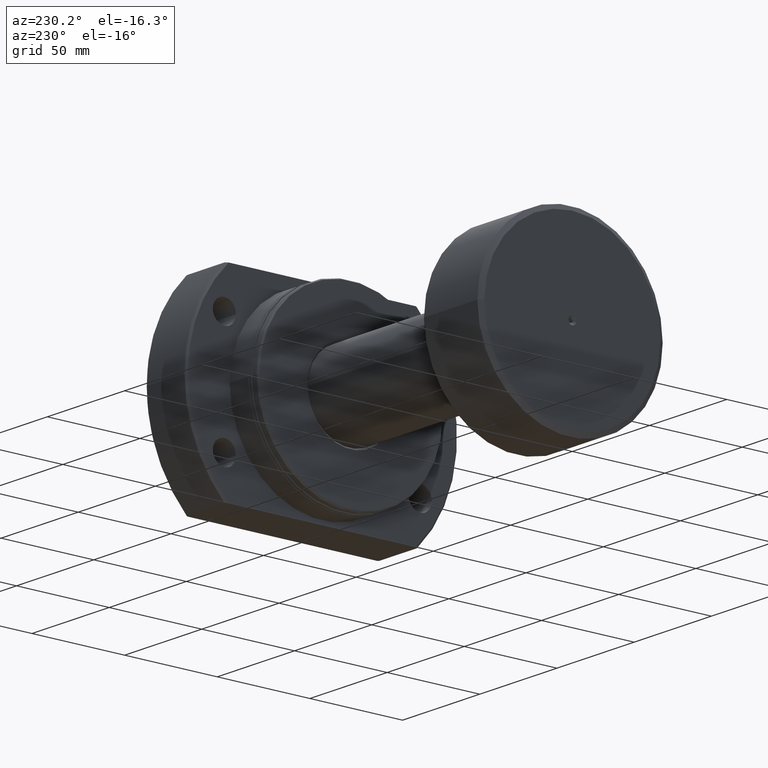
[diagram: clean part render]
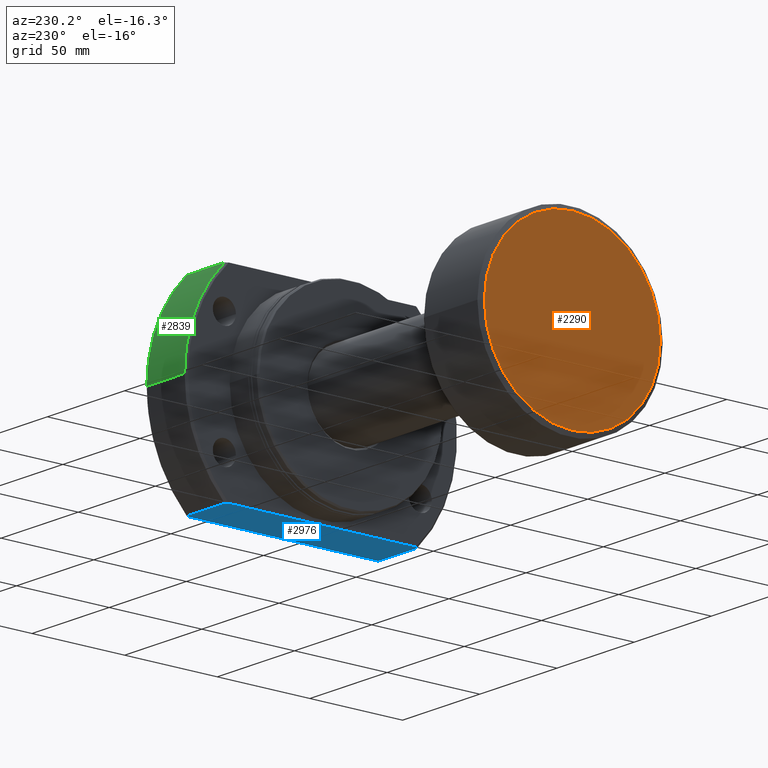
[diagram: same view with three faces highlighted in distinct colors, each labeled with its STEP entity id]
A machine part, auxiliary view with three faces highlighted in distinct colors.
Their STEP definitions:

[orange] entity #2290 — the highlighted planar face has unit normal (-1, -0, 0).
#49 = DIRECTION ( 'NONE',  ( 1.069542322069073813E-17, -1.000000000000000000, 0.000000000000000000 ) ) ;
#70 = DIRECTION ( 'NONE',  ( 1.069542322069065647E-17, -1.000000000000000000, 0.000000000000000000 ) ) ;
#227 = VERTEX_POINT ( 'NONE', #1919 ) ;
#296 = DIRECTION ( 'NONE',  ( -1.000000000000000000, -1.069542322069065801E-17, 0.000000000000000000 ) ) ;
#372 = CIRCLE ( 'NONE', #2814, 47.50000000000000000 ) ;
#454 = CARTESIAN_POINT ( 'NONE',  ( 4.801007089984315887E-15, 47.50000000000000000, 0.000000000000000000 ) ) ;
#499 = AXIS2_PLACEMENT_3D ( 'NONE', #2258, #3124, #1699 ) ;
#537 = CARTESIAN_POINT ( 'NONE',  ( 5.817072295949928215E-15, -47.50000000000000000, 5.970153145843347150E-15 ) ) ;
#982 = DIRECTION ( 'NONE',  ( -1.000000000000000000, -1.069542322069065801E-17, -0.000000000000000000 ) ) ;
#1035 = EDGE_LOOP ( 'NONE', ( #2123, #2527 ) ) ;
#1062 = DIRECTION ( 'NONE',  ( 1.069542322069073813E-17, -1.000000000000000000, 0.000000000000000000 ) ) ;
#1096 = DIRECTION ( 'NONE',  ( 1.000000000000000000, 1.069542322069065801E-17, 0.000000000000000000 ) ) ;
#1265 = AXIS2_PLACEMENT_3D ( 'NONE', #1948, #1096, #1062 ) ;
#1325 = CIRCLE ( 'NONE', #1265, 2.074999999999965539 ) ;
#1378 = EDGE_LOOP ( 'NONE', ( #3646, #2866 ) ) ;
#1514 = VERTEX_POINT ( 'NONE', #454 ) ;
#1693 = PLANE ( 'NONE',  #3484 ) ;
#1699 = DIRECTION ( 'NONE',  ( 1.069542322069065647E-17, -1.000000000000000000, 0.000000000000000000 ) ) ;
#1735 = EDGE_CURVE ( 'NONE', #1514, #2204, #2044, .T. ) ;
#1828 = VERTEX_POINT ( 'NONE', #2912 ) ;
#1919 = CARTESIAN_POINT ( 'NONE',  ( 2.654519846483561026E-15, 2.541142108230715670E-16, -2.074999999999965539 ) ) ;
#1948 = CARTESIAN_POINT ( 'NONE',  ( 2.654519846483561026E-15, 0.000000000000000000, 0.000000000000000000 ) ) ;
#1963 = FACE_BOUND ( 'NONE', #1035, .T. ) ;
#2044 = CIRCLE ( 'NONE', #499, 47.50000000000000000 ) ;
#2083 = EDGE_CURVE ( 'NONE', #1828, #227, #1325, .T. ) ;
#2123 = ORIENTED_EDGE ( 'NONE', *, *, #2083, .T. ) ;
#2204 = VERTEX_POINT ( 'NONE', #537 ) ;
#2258 = CARTESIAN_POINT ( 'NONE',  ( 5.309039692967122051E-15, 5.678242641172895614E-32, 0.000000000000000000 ) ) ;
#2281 = AXIS2_PLACEMENT_3D ( 'NONE', #2901, #3240, #49 ) ;
#2290 = ADVANCED_FACE ( 'NONE', ( #1963, #3116 ), #1693, .T. ) ;
#2374 = EDGE_CURVE ( 'NONE', #2204, #1514, #372, .T. ) ;
#2527 = ORIENTED_EDGE ( 'NONE', *, *, #2854, .T. ) ;
#2644 = CARTESIAN_POINT ( 'NONE',  ( 5.309039692967122051E-15, 5.678242641172895614E-32, 0.000000000000000000 ) ) ;
#2814 = AXIS2_PLACEMENT_3D ( 'NONE', #2644, #982, #70 ) ;
#2833 = DIRECTION ( 'NONE',  ( 1.069542322069065801E-17, -1.000000000000000000, 0.000000000000000000 ) ) ;
#2854 = EDGE_CURVE ( 'NONE', #227, #1828, #3472, .T. ) ;
#2866 = ORIENTED_EDGE ( 'NONE', *, *, #2374, .T. ) ;
#2901 = CARTESIAN_POINT ( 'NONE',  ( 2.654519846483561026E-15, 0.000000000000000000, 0.000000000000000000 ) ) ;
#2912 = CARTESIAN_POINT ( 'NONE',  ( 2.654519846483561026E-15, 0.000000000000000000, 2.074999999999965539 ) ) ;
#3116 = FACE_OUTER_BOUND ( 'NONE', #1378, .T. ) ;
#3124 = DIRECTION ( 'NONE',  ( -1.000000000000000000, -1.069542322069065801E-17, -0.000000000000000000 ) ) ;
#3172 = CARTESIAN_POINT ( 'NONE',  ( 2.654519846483561026E-15, 2.839121320586447807E-32, 0.000000000000000000 ) ) ;
#3240 = DIRECTION ( 'NONE',  ( 1.000000000000000000, 1.069542322069065801E-17, 0.000000000000000000 ) ) ;
#3472 = CIRCLE ( 'NONE', #2281, 2.074999999999965539 ) ;
#3484 = AXIS2_PLACEMENT_3D ( 'NONE', #3172, #296, #2833 ) ;
#3646 = ORIENTED_EDGE ( 'NONE', *, *, #1735, .T. ) ;

[blue] entity #2976 — the highlighted planar face has unit normal (0, 0, 1).
#169 = CARTESIAN_POINT ( 'NONE',  ( 19.16504727819932796, -51.47073513786417465, -52.00000000000000000 ) ) ;
#271 = CARTESIAN_POINT ( 'NONE',  ( 44.50000000000000000, -73.00000000000001421, -52.00000000000000000 ) ) ;
#289 = VERTEX_POINT ( 'NONE', #2257 ) ;
#308 = EDGE_CURVE ( 'NONE', #1823, #539, #518, .T. ) ;
#337 = CARTESIAN_POINT ( 'NONE',  ( 44.33372060663040060, -51.47167105509207374, -52.00000000000000000 ) ) ;
#518 = B_SPLINE_CURVE_WITH_KNOTS ( 'NONE', 3,
 ( #3396, #1085, #3691, #3123 ),
 .UNSPECIFIED., .F., .F.,
 ( 4, 4 ),
 ( 0.08127662313014138995, 0.08302041353061251350 ),
 .UNSPECIFIED. ) ;
#539 = VERTEX_POINT ( 'NONE', #3491 ) ;
#544 = DIRECTION ( 'NONE',  ( -5.504030557965630938E-17, 1.000000000000000000, -0.000000000000000000 ) ) ;
#548 = CARTESIAN_POINT ( 'NONE',  ( 19.49999999999999289, -51.94468211472582198, -51.99999999999999289 ) ) ;
#561 = EDGE_CURVE ( 'NONE', #3298, #2280, #2649, .T. ) ;
#574 = CARTESIAN_POINT ( 'NONE',  ( 44.00000000000007816, -51.94468211472653252, -51.99999999999999289 ) ) ;
#601 = CARTESIAN_POINT ( 'NONE',  ( 18.50000000000000711, -50.00000000000000000, -52.00000000000000000 ) ) ;
#656 = CARTESIAN_POINT ( 'NONE',  ( 44.49999999999998579, 51.23475382979800941, -52.00000000000000000 ) ) ;
#785 = VERTEX_POINT ( 'NONE', #1390 ) ;
#855 = CARTESIAN_POINT ( 'NONE',  ( 44.00000000000007816, 51.94468211472651831, -52.00000000000000711 ) ) ;
#856 = CARTESIAN_POINT ( 'NONE',  ( 44.49999999999999289, -51.23475382979800230, -52.00000000000000000 ) ) ;
#864 = LINE ( 'NONE', #2259, #2284 ) ;
#969 = AXIS2_PLACEMENT_3D ( 'NONE', #1245, #3191, #1760 ) ;
#1085 = CARTESIAN_POINT ( 'NONE',  ( 19.16511005864717632, 51.47082397011282495, -52.00000000000000000 ) ) ;
#1165 = EDGE_CURVE ( 'NONE', #1340, #2736, #2730, .T. ) ;
#1209 = LINE ( 'NONE', #2351, #1886 ) ;
#1230 = FACE_OUTER_BOUND ( 'NONE', #2844, .T. ) ;
#1238 = CARTESIAN_POINT ( 'NONE',  ( 19.49999999999999289, 51.94468211472722885, -52.00000000000000711 ) ) ;
#1245 = CARTESIAN_POINT ( 'NONE',  ( -6.175615574477433256E-13, 51.94468211472779728, -52.00000000000000000 ) ) ;
#1274 = ORIENTED_EDGE ( 'NONE', *, *, #561, .F. ) ;
#1292 = CARTESIAN_POINT ( 'NONE',  ( 18.83168451724294101, -50.99579223244747794, -52.00000000000000000 ) ) ;
#1306 = ORIENTED_EDGE ( 'NONE', *, *, #3189, .F. ) ;
#1340 = VERTEX_POINT ( 'NONE', #1492 ) ;
#1390 = CARTESIAN_POINT ( 'NONE',  ( 44.49999999999999289, -51.23475382979800230, -52.00000000000000000 ) ) ;
#1471 = LINE ( 'NONE', #601, #2069 ) ;
#1492 = CARTESIAN_POINT ( 'NONE',  ( 18.50000000000000711, -50.51979809935892263, -52.00000000000000000 ) ) ;
#1509 = CARTESIAN_POINT ( 'NONE',  ( 44.16706589136729377, 51.70828942705217912, -52.00000000000000000 ) ) ;
#1750 = CARTESIAN_POINT ( 'NONE',  ( 44.16705041831157530, -51.70831132091211657, -52.00000000000000000 ) ) ;
#1756 = ORIENTED_EDGE ( 'NONE', *, *, #3434, .T. ) ;
#1760 = DIRECTION ( 'NONE',  ( 1.000000000000000000, 0.000000000000000000, -0.000000000000000000 ) ) ;
#1786 = CARTESIAN_POINT ( 'NONE',  ( 44.33373614671723573, 51.47164891335710735, -52.00000000000000000 ) ) ;
#1823 = VERTEX_POINT ( 'NONE', #1238 ) ;
#1829 = ORIENTED_EDGE ( 'NONE', *, *, #3225, .F. ) ;
#1864 = B_SPLINE_CURVE_WITH_KNOTS ( 'NONE', 3,
 ( #574, #1750, #337, #856 ),
 .UNSPECIFIED., .F., .F.,
 ( 4, 4 ),
 ( 0.08127369397833110465, 0.08214353487046274771 ),
 .UNSPECIFIED. ) ;
#1886 = VECTOR ( 'NONE', #2073, 1000.000000000000000 ) ;
#1992 = EDGE_CURVE ( 'NONE', #289, #785, #1864, .T. ) ;
#2015 = CARTESIAN_POINT ( 'NONE',  ( 44.49999999999998579, 51.23475382979800941, -52.00000000000000000 ) ) ;
#2018 = CARTESIAN_POINT ( 'NONE',  ( 19.49999999999999289, -51.94468211472582198, -51.99999999999999289 ) ) ;
#2069 = VECTOR ( 'NONE', #2597, 1000.000000000000000 ) ;
#2073 = DIRECTION ( 'NONE',  ( 1.000000000000000000, -2.886466111666351885E-14, -0.000000000000000000 ) ) ;
#2257 = CARTESIAN_POINT ( 'NONE',  ( 44.00000000000007816, -51.94468211472653252, -51.99999999999999289 ) ) ;
#2259 = CARTESIAN_POINT ( 'NONE',  ( -3.615163723935665985E-12, -51.94468211472526065, -51.99999999999999289 ) ) ;
#2278 = LINE ( 'NONE', #271, #2403 ) ;
#2280 = VERTEX_POINT ( 'NONE', #855 ) ;
#2284 = VECTOR ( 'NONE', #3398, 1000.000000000000000 ) ;
#2317 = ORIENTED_EDGE ( 'NONE', *, *, #3475, .F. ) ;
#2351 = CARTESIAN_POINT ( 'NONE',  ( -6.175615574477433256E-13, 51.94468211472779018, -52.00000000000000711 ) ) ;
#2403 = VECTOR ( 'NONE', #544, 1000.000000000000000 ) ;
#2476 = CARTESIAN_POINT ( 'NONE',  ( 18.50000000000000711, -50.51979809935892263, -52.00000000000000000 ) ) ;
#2579 = ORIENTED_EDGE ( 'NONE', *, *, #308, .F. ) ;
#2597 = DIRECTION ( 'NONE',  ( 5.504030557965630938E-17, -1.000000000000000000, 0.000000000000000000 ) ) ;
#2647 = CARTESIAN_POINT ( 'NONE',  ( 44.00000000000007816, 51.94468211472651831, -52.00000000000000711 ) ) ;
#2649 = B_SPLINE_CURVE_WITH_KNOTS ( 'NONE', 3,
 ( #656, #1786, #1509, #2647 ),
 .UNSPECIFIED., .F., .F.,
 ( 4, 4 ),
 ( 0.1948392449670404702, 0.1957153114758534707 ),
 .UNSPECIFIED. ) ;
#2677 = ORIENTED_EDGE ( 'NONE', *, *, #1992, .F. ) ;
#2730 = B_SPLINE_CURVE_WITH_KNOTS ( 'NONE', 3,
 ( #2476, #1292, #169, #2018 ),
 .UNSPECIFIED., .F., .F.,
 ( 4, 4 ),
 ( 0.1939618309439029020, 0.1957182682511685867 ),
 .UNSPECIFIED. ) ;
#2736 = VERTEX_POINT ( 'NONE', #548 ) ;
#2844 = EDGE_LOOP ( 'NONE', ( #1756, #1274, #1829, #2677, #1306, #2933, #2317, #2579 ) ) ;
#2933 = ORIENTED_EDGE ( 'NONE', *, *, #1165, .F. ) ;
#2976 = ADVANCED_FACE ( 'NONE', ( #1230 ), #3485, .F. ) ;
#3123 = CARTESIAN_POINT ( 'NONE',  ( 18.50000000000000355, 50.51979809935892263, -52.00000000000000000 ) ) ;
#3189 = EDGE_CURVE ( 'NONE', #2736, #289, #864, .T. ) ;
#3191 = DIRECTION ( 'NONE',  ( 0.000000000000000000, 0.000000000000000000, 1.000000000000000000 ) ) ;
#3225 = EDGE_CURVE ( 'NONE', #785, #3298, #2278, .T. ) ;
#3298 = VERTEX_POINT ( 'NONE', #2015 ) ;
#3396 = CARTESIAN_POINT ( 'NONE',  ( 19.49999999999999289, 51.94468211472722885, -52.00000000000000711 ) ) ;
#3398 = DIRECTION ( 'NONE',  ( 1.000000000000000000, -2.886466111666351885E-14, -0.000000000000000000 ) ) ;
#3434 = EDGE_CURVE ( 'NONE', #1823, #2280, #1209, .T. ) ;
#3475 = EDGE_CURVE ( 'NONE', #539, #1340, #1471, .T. ) ;
#3485 = PLANE ( 'NONE',  #969 ) ;
#3491 = CARTESIAN_POINT ( 'NONE',  ( 18.50000000000000355, 50.51979809935892263, -52.00000000000000000 ) ) ;
#3691 = CARTESIAN_POINT ( 'NONE',  ( 18.83174783879943703, 50.99588310400711322, -52.00000000000000000 ) ) ;

[green] entity #2839 — the highlighted cylindrical surface (partial cylindrical patch) has radius 73.5 mm, axis along (1, 0, 0).
#22 = ORIENTED_EDGE ( 'NONE', *, *, #1413, .T. ) ;
#32 = FACE_OUTER_BOUND ( 'NONE', #1268, .T. ) ;
#88 = LINE ( 'NONE', #3220, #2282 ) ;
#377 = CIRCLE ( 'NONE', #2458, 73.49999999999991473 ) ;
#449 = EDGE_CURVE ( 'NONE', #1706, #2622, #2927, .T. ) ;
#458 = CARTESIAN_POINT ( 'NONE',  ( 44.00000000000008527, 2.421773445504882888E-15, 0.000000000000000000 ) ) ;
#591 = ORIENTED_EDGE ( 'NONE', *, *, #3564, .F. ) ;
#897 = DIRECTION ( 'NONE',  ( -4.720335989052541552E-17, 1.000000000000000000, 0.000000000000000000 ) ) ;
#928 = DIRECTION ( 'NONE',  ( 1.000000000000000000, 5.504030557965630938E-17, -0.000000000000000000 ) ) ;
#1008 = CARTESIAN_POINT ( 'NONE',  ( 44.00000000000007816, 73.49999999999991473, 0.000000000000000000 ) ) ;
#1068 = ORIENTED_EDGE ( 'NONE', *, *, #2678, .F. ) ;
#1268 = EDGE_LOOP ( 'NONE', ( #591, #1639, #22, #1068 ) ) ;
#1413 = EDGE_CURVE ( 'NONE', #2622, #1885, #88, .T. ) ;
#1475 = CARTESIAN_POINT ( 'NONE',  ( 44.50000000000000000, 2.449293598294705724E-15, 0.000000000000000000 ) ) ;
#1639 = ORIENTED_EDGE ( 'NONE', *, *, #449, .T. ) ;
#1704 = DIRECTION ( 'NONE',  ( -9.440671978105083104E-17, 1.000000000000000000, 0.000000000000000000 ) ) ;
#1706 = VERTEX_POINT ( 'NONE', #2821 ) ;
#1879 = LINE ( 'NONE', #2479, #3026 ) ;
#1885 = VERTEX_POINT ( 'NONE', #2591 ) ;
#2030 = AXIS2_PLACEMENT_3D ( 'NONE', #3199, #2348, #897 ) ;
#2156 = CARTESIAN_POINT ( 'NONE',  ( 19.49999999999999289, 51.94468211472723596, 52.00000000000000000 ) ) ;
#2264 = DIRECTION ( 'NONE',  ( 1.000000000000000000, 5.504030557965630938E-17, -0.000000000000000000 ) ) ;
#2282 = VECTOR ( 'NONE', #3551, 1000.000000000000000 ) ;
#2301 = CYLINDRICAL_SURFACE ( 'NONE', #2938, 73.49999999999991473 ) ;
#2348 = DIRECTION ( 'NONE',  ( 1.000000000000000000, 5.504030557965630938E-17, -0.000000000000000000 ) ) ;
#2458 = AXIS2_PLACEMENT_3D ( 'NONE', #458, #2264, #1704 ) ;
#2479 = CARTESIAN_POINT ( 'NONE',  ( 44.49999999999999289, 73.49999999999991473, 0.000000000000000000 ) ) ;
#2591 = CARTESIAN_POINT ( 'NONE',  ( 44.00000000000007816, 51.94468211472652541, 52.00000000000000000 ) ) ;
#2622 = VERTEX_POINT ( 'NONE', #2156 ) ;
#2678 = EDGE_CURVE ( 'NONE', #3589, #1885, #377, .T. ) ;
#2821 = CARTESIAN_POINT ( 'NONE',  ( 19.49999999999999289, 73.49999999999991473, 0.000000000000000000 ) ) ;
#2839 = ADVANCED_FACE ( 'NONE', ( #32 ), #2301, .T. ) ;
#2917 = DIRECTION ( 'NONE',  ( -9.440671978105083104E-17, 1.000000000000000000, 0.000000000000000000 ) ) ;
#2927 = CIRCLE ( 'NONE', #2030, 73.49999999999991473 ) ;
#2938 = AXIS2_PLACEMENT_3D ( 'NONE', #1475, #928, #2917 ) ;
#3026 = VECTOR ( 'NONE', #3604, 1000.000000000000000 ) ;
#3199 = CARTESIAN_POINT ( 'NONE',  ( 19.49999999999999645, 1.073285958803297879E-15, 0.000000000000000000 ) ) ;
#3220 = CARTESIAN_POINT ( 'NONE',  ( -6.175615574477433256E-13, 51.94468211472779728, 52.00000000000000000 ) ) ;
#3551 = DIRECTION ( 'NONE',  ( 1.000000000000000000, -2.886466111666351885E-14, -0.000000000000000000 ) ) ;
#3564 = EDGE_CURVE ( 'NONE', #1706, #3589, #1879, .T. ) ;
#3589 = VERTEX_POINT ( 'NONE', #1008 ) ;
#3604 = DIRECTION ( 'NONE',  ( 1.000000000000000000, 5.504030557965630938E-17, -0.000000000000000000 ) ) ;